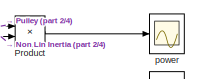
[diagram: root canvas - part 1/4, top right region]
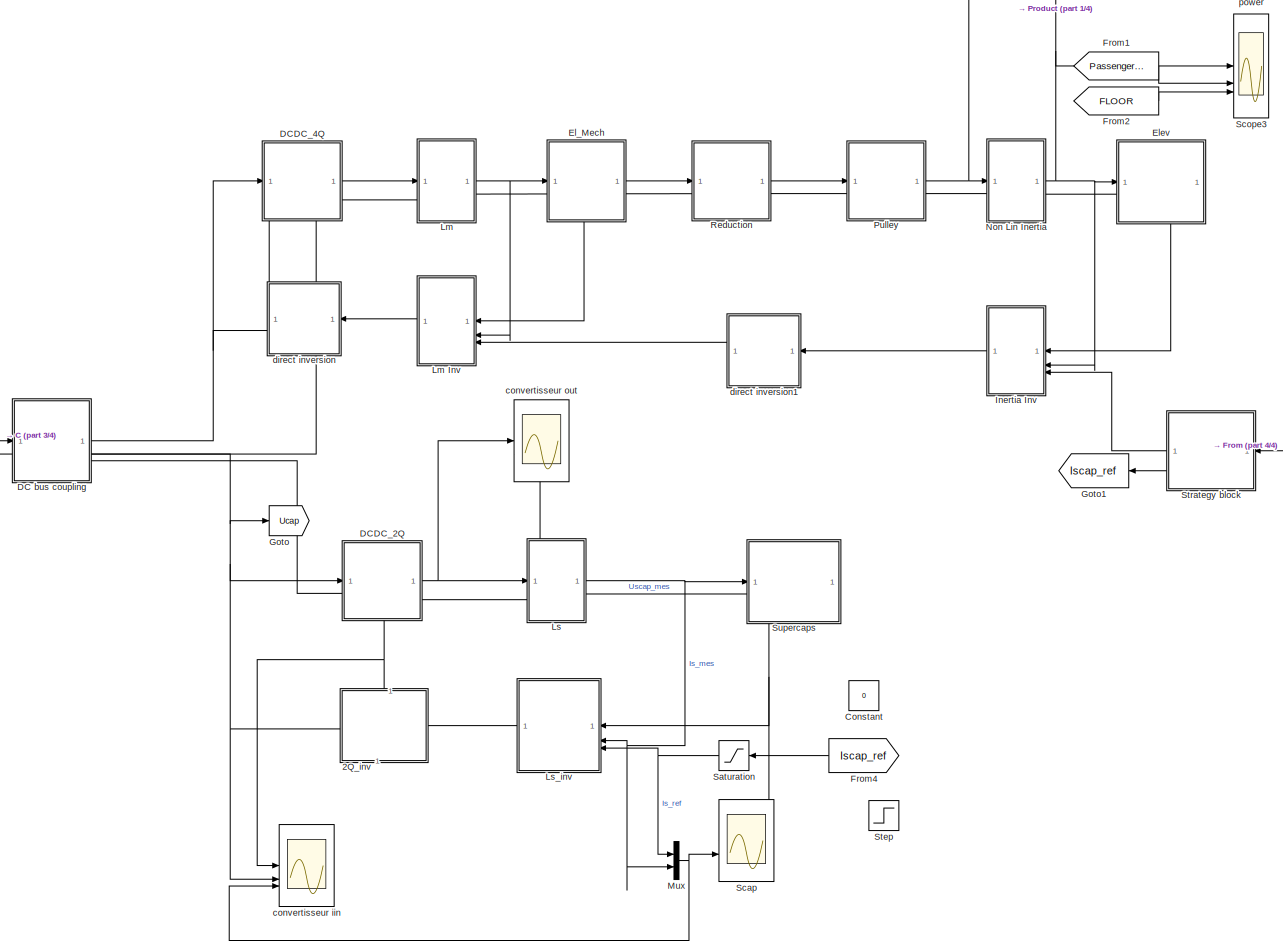
[diagram: root canvas - part 2/4, center side, full height]
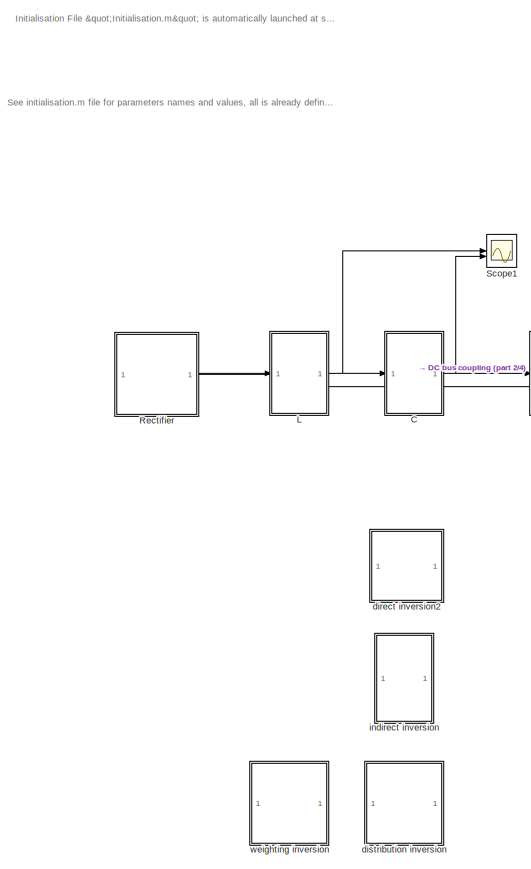
[diagram: root canvas - part 3/4, left side, full height]
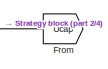
[diagram: root canvas - part 4/4, middle right region]
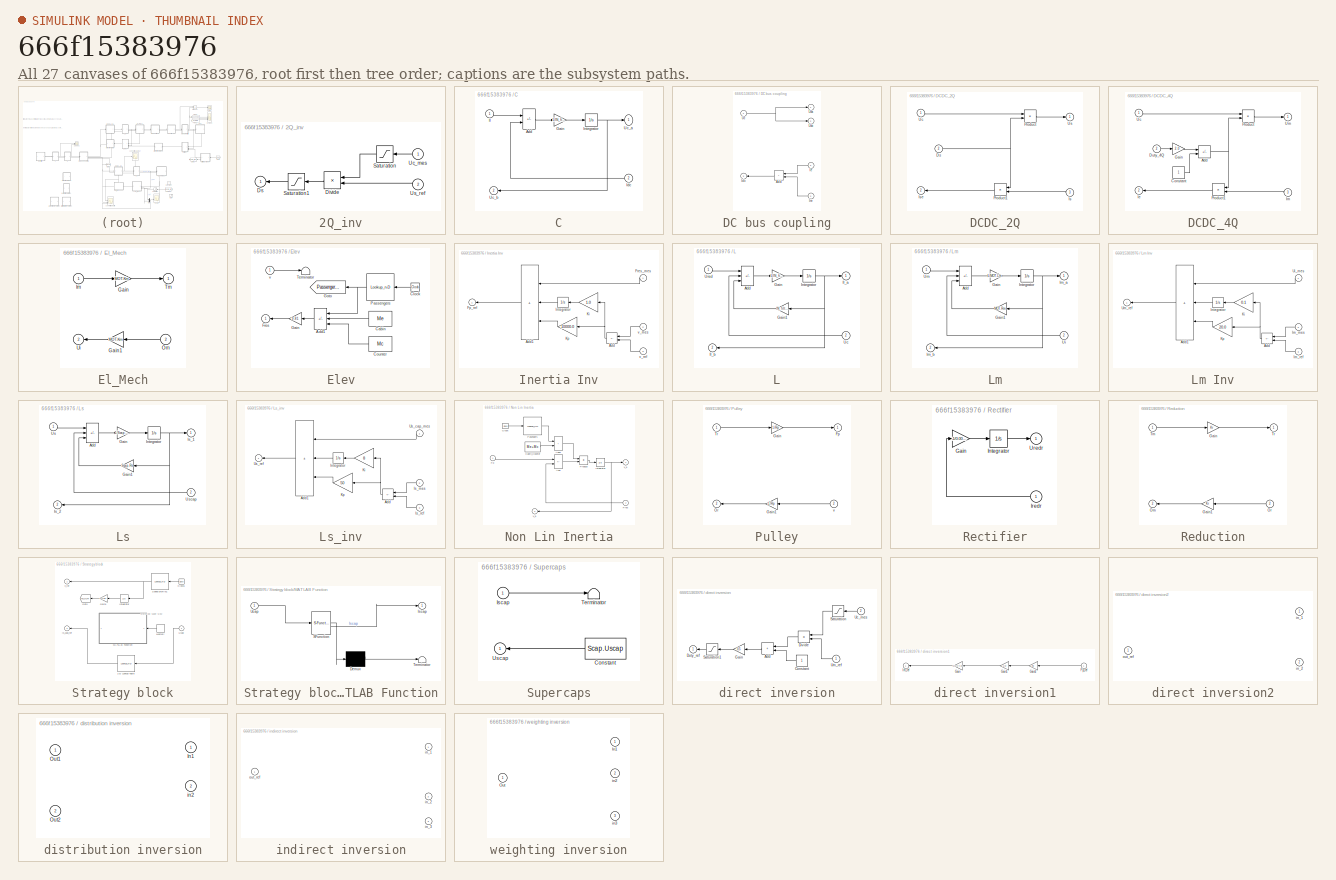
[diagram: thumbnail index - all 27 canvases of the model, root first then tree order]
MODEL slx_666f15383976
KIND model
CONFIG AbsTol = auto
CONFIG EnableMultiTasking = off
CONFIG FixedStep = auto
CONFIG InitFcn = Initialisation
CONFIG MaxStep = SIM.Step_max
CONFIG MinStep = auto
CONFIG RelTol = 1e-3
CONFIG SampleTimeConstraint = Unconstrained
CONFIG SolverName = VariableStepAuto
CONFIG StartTime = 0.0
CONFIG StopTime = SIM.Tmax
BLOCK [SubSystem] 2Q_inv
  PortSchema = {"entries":[{"content":{"sides":[{"content":{},"type":"ConnectorPlacement.EquallySpacedRectSide","uuid":"18509001-c8dc-44e8-8931-792b6113cab0"},{"content":{"connectorIds":["Out1"],"side":"RIGHT"},"type":"ConnectorPlacement.EquallySpacedRectSide","uuid":"41b7bb3a-745d-4c1f-860c-ac15cc754215"},{"content":{"connectorIds":["In1"],"side":"TOP"},"type":"ConnectorPlacement.EquallySpacedRectSide","uuid":"...<+372ch>
BLOCK [Product] 2Q_inv/Divide
  Inputs = /*
  NameLocation = top
BLOCK [Outport] 2Q_inv/Ds
  InitialOutput = 0
  VectorParamsAs1DForOutWhenUnconnected = off
BLOCK [Saturate] 2Q_inv/Saturation
  LowerLimit = 1
  NameLocation = top
  UpperLimit = Inf
BLOCK [Saturate] 2Q_inv/Saturation1
  LowerLimit = 0
  NameLocation = top
  UpperLimit = 1
BLOCK [Inport] 2Q_inv/Uc_mes
  NameLocation = top
BLOCK [Inport] 2Q_inv/Us_ref
  NameLocation = top
  Port = 2
BLOCK [SubSystem] C
  NameLocation = top
  PortSchema = {"entries":[{"content":{"sides":[{"content":{"connectorIds":["In1","Out2"]},"type":"ConnectorPlacement.EquallySpacedRectSide","uuid":"af5f45e0-9d2b-440a-ad04-5e1193860bd0"},{"content":{"connectorIds":["Out1","In2"],"side":"RIGHT"},"type":"ConnectorPlacement.EquallySpacedRectSide","uuid":"8de6af24-0ac6-4b19-a2ba-5daa5911acc7"},{"content":{"connectorIds":[],"side":"TOP"},"type":"ConnectorPlacement.E...<+253ch>  <repeated x8 — deduplicated; at blocks: C, El_Mech, L, Lm, Ls, Non Lin Inertia, Pulley, Reduction>
BLOCK [Sum] C/Add
  IconShape = rectangular
  Inputs = +-
BLOCK [Gain] C/Gain
  Gain = 1/IN_filter.C
BLOCK [Inport] C/Idc
  Port = 2
BLOCK [Inport] C/Il
BLOCK [Integrator] C/Integrator
  InitialCondition = Ured
BLOCK [Outport] C/Uc_a
  InitialOutput = 0
  VectorParamsAs1DForOutWhenUnconnected = off
BLOCK [Outport] C/Uc_b
  InitialOutput = 0
  Port = 2
  VectorParamsAs1DForOutWhenUnconnected = off
BLOCK [Constant] Constant
  NameLocation = top
  Value = 0
BLOCK [SubSystem] DC bus coupling
  NameLocation = top
  PortSchema = {"entries":[{"content":{"sides":[{"content":{"connectorIds":["In1","Out3"]},"type":"ConnectorPlacement.EquallySpacedRectSide","uuid":"a0cc6eb3-0f35-4a31-afc0-a3cae9b9d5bb"},{"content":{"connectorIds":["Out1","In2","Out2","In3"],"side":"RIGHT"},"type":"ConnectorPlacement.EquallySpacedRectSide","uuid":"f0fc86c1-6f18-402b-9eea-d081ace87e62"},{"content":{"connectorIds":[],"side":"TOP"},"type":"Connect...<+266ch>
BLOCK [Sum] DC bus coupling/Add
  IconShape = rectangular
  NameLocation = top
BLOCK [Outport] DC bus coupling/Idc
  InitialOutput = 0
  Port = 3
  VectorParamsAs1DForOutWhenUnconnected = off
BLOCK [Inport] DC bus coupling/Ie
  NameLocation = top
  Port = 2
BLOCK [Inport] DC bus coupling/Ire
  NameLocation = top
  Port = 3
BLOCK [Inport] DC bus coupling/Uc
BLOCK [Outport] DC bus coupling/Uca
  InitialOutput = 0
  VectorParamsAs1DForOutWhenUnconnected = off
BLOCK [Outport] DC bus coupling/Ucb
  InitialOutput = 0
  Port = 2
  VectorParamsAs1DForOutWhenUnconnected = off
BLOCK [SubSystem] DCDC_2Q
  NameLocation = top
  PortSchema = {"entries":[{"content":{"sides":[{"content":{"connectorIds":["In1","Out2"]},"type":"ConnectorPlacement.EquallySpacedRectSide","uuid":"18b8dea3-c73c-4489-bf41-881ff948b4bd"},{"content":{"connectorIds":["Out1","In3"],"side":"RIGHT"},"type":"ConnectorPlacement.EquallySpacedRectSide","uuid":"3421d2ab-808d-44dd-9f9d-6c595338ccbb"},{"content":{"connectorIds":[],"side":"TOP"},"type":"ConnectorPlacement.E...<+402ch>
BLOCK [Inport] DCDC_2Q/Ds
  NameLocation = top
  Port = 2
BLOCK [Inport] DCDC_2Q/Is
  NameLocation = top
  Port = 3
BLOCK [Outport] DCDC_2Q/Ise
  InitialOutput = 0
  Port = 2
  VectorParamsAs1DForOutWhenUnconnected = off
BLOCK [Product] DCDC_2Q/Product
BLOCK [Product] DCDC_2Q/Product1
  NameLocation = top
BLOCK [Inport] DCDC_2Q/Uc
BLOCK [Outport] DCDC_2Q/Us
  InitialOutput = 0
  VectorParamsAs1DForOutWhenUnconnected = off
BLOCK [SubSystem] DCDC_4Q
  NameLocation = top
  PortSchema = {"entries":[{"content":{"sides":[{"content":{"connectorIds":["In1","Out2"]},"type":"ConnectorPlacement.EquallySpacedRectSide","uuid":"18b8dea3-c73c-4489-bf41-881ff948b4bd"},{"content":{"connectorIds":["Out1","In3"],"side":"RIGHT"},"type":"ConnectorPlacement.EquallySpacedRectSide","uuid":"3421d2ab-808d-44dd-9f9d-6c595338ccbb"},{"content":{"connectorIds":[],"side":"TOP"},"type":"ConnectorPlacement.E...<+402ch>
BLOCK [Sum] DCDC_4Q/Add
  IconShape = rectangular
  Inputs = +-
BLOCK [Constant] DCDC_4Q/Constant
BLOCK [Inport] DCDC_4Q/Duty_4Q
  NameLocation = top
  Port = 2
BLOCK [Gain] DCDC_4Q/Gain
  Gain = 2.0
BLOCK [Outport] DCDC_4Q/Ie
  InitialOutput = 0
  Port = 2
  VectorParamsAs1DForOutWhenUnconnected = off
BLOCK [Inport] DCDC_4Q/Im
  NameLocation = top
  Port = 3
BLOCK [Product] DCDC_4Q/Product
BLOCK [Product] DCDC_4Q/Product1
  NameLocation = top
BLOCK [Inport] DCDC_4Q/Uc
BLOCK [Outport] DCDC_4Q/Um
  InitialOutput = 0
  VectorParamsAs1DForOutWhenUnconnected = off
BLOCK [SubSystem] El_Mech
  NameLocation = top
BLOCK [Gain] El_Mech/Gain
  Gain = MOT.Km
BLOCK [Gain] El_Mech/Gain1
  Gain = MOT.Km
  NameLocation = top
BLOCK [Inport] El_Mech/Im
BLOCK [Inport] El_Mech/Om
  Port = 2
BLOCK [Outport] El_Mech/Tm
  InitialOutput = 0
  VectorParamsAs1DForOutWhenUnconnected = off
BLOCK [Outport] El_Mech/Ui
  InitialOutput = 0
  Port = 2
  VectorParamsAs1DForOutWhenUnconnected = off
BLOCK [SubSystem] Elev
  PortSchema = {"entries":[{"content":{"sides":[{"content":{"connectorIds":["In1","Out1"]},"type":"ConnectorPlacement.EquallySpacedRectSide","uuid":"5a8fdec0-a98b-43d7-a4cd-372895ae0c1b"},{"content":{"connectorIds":[],"side":"RIGHT"},"type":"ConnectorPlacement.EquallySpacedRectSide","uuid":"94211a24-953d-4ef9-bbc7-a0604a4babfb"},{"content":{"connectorIds":[],"side":"TOP"},"type":"ConnectorPlacement.EquallySpaced...<+241ch>
BLOCK [Sum] Elev/Add1
  IconShape = rectangular
  Inputs = ++-
  NameLocation = top
BLOCK [Constant] Elev/Cabin
  NameLocation = top
  Value = Me
BLOCK [Clock] Elev/Clock
  NameLocation = top
BLOCK [Constant] Elev/Counter
  NameLocation = top
  Value = Mc
BLOCK [Outport] Elev/Fres
  InitialOutput = 0
  NameLocation = top
  VectorParamsAs1DForOutWhenUnconnected = off
BLOCK [Gain] Elev/Gain
  Gain = 9.81
  NameLocation = top
BLOCK [Goto] Elev/Goto
  GotoTag = Passenger_Mass
  NameLocation = top
  TagVisibility = global
BLOCK [Lookup_n-D] Elev/Passengers
  BreakpointsForDimension1 = cycle.time_ref
  InputPortMap = u0
  InternalRulePriority = Speed
  NameLocation = top
  NumberOfTableDimensions = 1
  RndMeth = Simplest
  Table = cycle.mass_ref
BLOCK [Terminator] Elev/Terminator
BLOCK [Inport] Elev/v
BLOCK [From] From
  GotoTag = Ucap
  NameLocation = top
BLOCK [From] From1
  GotoTag = Passenger_Mass
  TagVisibility = global
BLOCK [From] From2
  GotoTag = FLOOR
  TagVisibility = global
BLOCK [From] From4
  GotoTag = Iscap_ref
BLOCK [Goto] Goto
  GotoTag = Ucap
BLOCK [Goto] Goto1
  GotoTag = Iscap_ref
  NameLocation = top
BLOCK [SubSystem] Inertia Inv
BLOCK [Sum] Inertia Inv/Add
  IconShape = rectangular
  Inputs = -+
  NameLocation = top
BLOCK [Sum] Inertia Inv/Add1
  IconShape = rectangular
  Inputs = +++
  NameLocation = top
BLOCK [Outport] Inertia Inv/Fp_ref
  InitialOutput = 0
  VectorParamsAs1DForOutWhenUnconnected = off
BLOCK [Inport] Inertia Inv/Fres_mes
  NameLocation = top
BLOCK [Integrator] Inertia Inv/Integrator
  NameLocation = top
BLOCK [Gain] Inertia Inv/Ki
  Gain = 1.0
  NameLocation = top
BLOCK [Gain] Inertia Inv/Kp
  Gain = 10000.0
  NameLocation = top
BLOCK [Inport] Inertia Inv/v_mes
  NameLocation = top
  Port = 2
BLOCK [Inport] Inertia Inv/v_ref
  Port = 3
BLOCK [SubSystem] L
  NameLocation = top
BLOCK [Sum] L/Add
  IconShape = rectangular
  Inputs = +--
BLOCK [Gain] L/Gain
  Gain = 1/IN_filter.L
BLOCK [Gain] L/Gain1
  Gain = IN_filter.R
  NameLocation = top
BLOCK [Outport] L/Il_a
  InitialOutput = 0
  VectorParamsAs1DForOutWhenUnconnected = off
BLOCK [Outport] L/Il_b
  InitialOutput = 0
  Port = 2
  VectorParamsAs1DForOutWhenUnconnected = off
BLOCK [Integrator] L/Integrator
  LowerSaturationLimit = 0.0
BLOCK [Inport] L/Uc
  Port = 2
BLOCK [Inport] L/Ured
BLOCK [SubSystem] Lm
  NameLocation = top
BLOCK [SubSystem] Lm Inv
BLOCK [Sum] Lm Inv/Add
  IconShape = rectangular
  Inputs = -+
  NameLocation = top
BLOCK [Sum] Lm Inv/Add1
  IconShape = rectangular
  Inputs = +++
  NameLocation = top
BLOCK [Inport] Lm Inv/Im_mes
  NameLocation = top
  Port = 2
BLOCK [Inport] Lm Inv/Im_ref
  Port = 3
BLOCK [Integrator] Lm Inv/Integrator
  NameLocation = top
BLOCK [Gain] Lm Inv/Ki
  Gain = 0.1
  NameLocation = top
BLOCK [Gain] Lm Inv/Kp
  Gain = 20.0
  NameLocation = top
BLOCK [Inport] Lm Inv/Ui_mes
  NameLocation = top
BLOCK [Outport] Lm Inv/Um_ref
  InitialOutput = 0
  VectorParamsAs1DForOutWhenUnconnected = off
BLOCK [Sum] Lm/Add
  IconShape = rectangular
  Inputs = +--
BLOCK [Gain] Lm/Gain
  Gain = 1/MOT.Lm
BLOCK [Gain] Lm/Gain1
  Gain = MOT.Rm
  NameLocation = top
BLOCK [Outport] Lm/Im_a
  InitialOutput = 0
  VectorParamsAs1DForOutWhenUnconnected = off
BLOCK [Outport] Lm/Im_b
  InitialOutput = 0
  Port = 2
  VectorParamsAs1DForOutWhenUnconnected = off
BLOCK [Integrator] Lm/Integrator
BLOCK [Inport] Lm/Ui
  Port = 2
BLOCK [Inport] Lm/Um
BLOCK [SubSystem] Ls
  NameLocation = top
BLOCK [Sum] Ls/Add
  IconShape = rectangular
  Inputs = +--
BLOCK [Gain] Ls/Gain
  Gain = 1/Scap.Ls
BLOCK [Gain] Ls/Gain1
  Gain = Scap.Rs
  NameLocation = top
BLOCK [Integrator] Ls/Integrator
  LowerSaturationLimit = 0.0
BLOCK [Outport] Ls/Is_1
  InitialOutput = 0
  VectorParamsAs1DForOutWhenUnconnected = off
BLOCK [Outport] Ls/Is_2
  InitialOutput = 0
  Port = 2
  VectorParamsAs1DForOutWhenUnconnected = off
BLOCK [Inport] Ls/Us
BLOCK [Inport] Ls/Uscap
  Port = 2
BLOCK [SubSystem] Ls_inv
BLOCK [Sum] Ls_inv/Add
  IconShape = rectangular
  Inputs = -+
  NameLocation = top
BLOCK [Sum] Ls_inv/Add1
  IconShape = rectangular
  Inputs = +++
  NameLocation = top
BLOCK [Integrator] Ls_inv/Integrator
  NameLocation = top
BLOCK [Inport] Ls_inv/Is_mes
  NameLocation = top
  Port = 2
BLOCK [Inport] Ls_inv/Is_ref
  Port = 3
BLOCK [Gain] Ls_inv/Ki
  Gain = 8
  NameLocation = top
BLOCK [Gain] Ls_inv/Kp
  Gain = 50
BLOCK [Inport] Ls_inv/Us_cap_mes
  NameLocation = top
BLOCK [Outport] Ls_inv/Us_ref
  InitialOutput = 0
  VectorParamsAs1DForOutWhenUnconnected = off
BLOCK [Mux] Mux
  DisplayOption = bar
  Inputs = 2
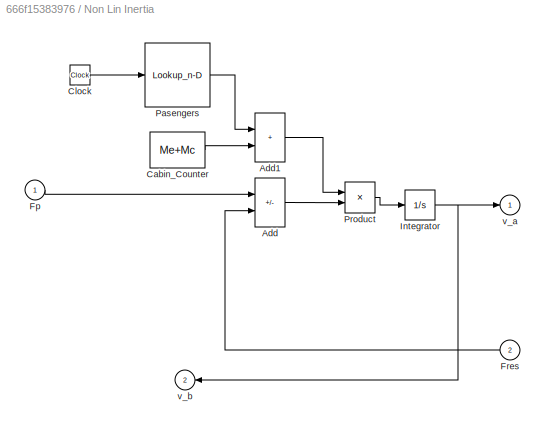
BLOCK [SubSystem] Non Lin Inertia
  NameLocation = top
BLOCK [Sum] Non Lin Inertia/Add
  IconShape = rectangular
  Inputs = +-
BLOCK [Sum] Non Lin Inertia/Add1
  IconShape = rectangular
BLOCK [Constant] Non Lin Inertia/Cabin_Counter
  Value = Me+Mc
BLOCK [Clock] Non Lin Inertia/Clock
BLOCK [Inport] Non Lin Inertia/Fp
BLOCK [Inport] Non Lin Inertia/Fres
  Port = 2
BLOCK [Integrator] Non Lin Inertia/Integrator
BLOCK [Lookup_n-D] Non Lin Inertia/Pasengers
  BreakpointsForDimension1 = cycle.time_ref
  InputPortMap = u0
  InternalRulePriority = Speed
  NumberOfTableDimensions = 1
  RndMeth = Simplest
  Table = cycle.mass_ref
BLOCK [Product] Non Lin Inertia/Product
  Inputs = /*
BLOCK [Outport] Non Lin Inertia/v_a
  InitialOutput = 0
  VectorParamsAs1DForOutWhenUnconnected = off
BLOCK [Outport] Non Lin Inertia/v_b
  InitialOutput = 0
  Port = 2
  VectorParamsAs1DForOutWhenUnconnected = off
BLOCK [Product] Product
BLOCK [SubSystem] Pulley
  NameLocation = top
BLOCK [Outport] Pulley/Fp
  InitialOutput = 0
  VectorParamsAs1DForOutWhenUnconnected = off
BLOCK [Gain] Pulley/Gain
  Gain = 1/Rp
BLOCK [Gain] Pulley/Gain1
  Gain = 1/Rp
  NameLocation = top
BLOCK [Outport] Pulley/Or
  InitialOutput = 0
  Port = 2
  VectorParamsAs1DForOutWhenUnconnected = off
BLOCK [Inport] Pulley/Tr
BLOCK [Inport] Pulley/v
  NameLocation = top
  Port = 2
BLOCK [SubSystem] Rectifier
  PortSchema = {"entries":[{"content":{"sides":[{"content":{"connectorIds":[]},"type":"ConnectorPlacement.EquallySpacedRectSide","uuid":"5a8fdec0-a98b-43d7-a4cd-372895ae0c1b"},{"content":{"connectorIds":["Out1","In1"],"side":"RIGHT"},"type":"ConnectorPlacement.EquallySpacedRectSide","uuid":"94211a24-953d-4ef9-bbc7-a0604a4babfb"},{"content":{"connectorIds":[],"side":"TOP"},"type":"ConnectorPlacement.EquallySpaced...<+241ch>
BLOCK [Gain] Rectifier/Gain
  Gain = -1/0.0001
BLOCK [Integrator] Rectifier/Integrator
  InitialCondition = Ured
  LimitOutput = on
  LowerSaturationLimit = Ured
BLOCK [Inport] Rectifier/Iredr
  NameLocation = top
BLOCK [Outport] Rectifier/Uredr
  InitialOutput = 0
  VectorParamsAs1DForOutWhenUnconnected = off
BLOCK [SubSystem] Reduction
  NameLocation = top
BLOCK [Gain] Reduction/Gain
  Gain = Kr
BLOCK [Gain] Reduction/Gain1
  Gain = Kr
  NameLocation = top
BLOCK [Outport] Reduction/Om
  InitialOutput = 0
  Port = 2
  VectorParamsAs1DForOutWhenUnconnected = off
BLOCK [Inport] Reduction/Or
  NameLocation = top
  Port = 2
BLOCK [Inport] Reduction/Tm
BLOCK [Outport] Reduction/Tr
  InitialOutput = 0
  VectorParamsAs1DForOutWhenUnconnected = off
BLOCK [Saturate] Saturation
  LowerLimit = -10
  NameLocation = top
  UpperLimit = 10
BLOCK [Scope] Scap
  ActiveDisplayYMaximum = 450
  ActiveDisplayYMinimum = 250
  DataLoggingVariableName = ScopeData2
  Floating = off
  GraphicalSettings = {"Style":{"BackgroundColor":[0.12941176470588237,0.12941176470588237,0.12941176470588237],"AxesColor":[0.07058823529411765,0.07058823529411765,0.07058823529411765],"LabelsColor":[0.8509803921568627,0.8509803921568627,0.8509803921568627],"PreserveColors":false,"Visible":[true,true,true],"LineStyle":["-","-","-"],"LineWidth":[1.5,1.5,1.5],"BarWidth":[0.9,0.9,0.9],"LineColor":["auto","auto","auto"],"...<+2521ch>
  LayoutDimensionsString = [2,1]
  MultipleDisplayCache = [{"MaxYLimMag":450,"MaxYLimReal":450,"MinYLimMag":250,"MinYLimReal":250,"PlotAsMagnitudePhase":false,"ShowGrid":true,"ShowLegend":true,"Title":"%<SignalLabel>","YLabel":"U [V]"},{"MaxYLimMag":11.250000000000007,"MaxYLimReal":11.250000000000007,"MinYLimMag":0,"MinYLimReal":-1.2500000000000642,"PlotAsMagnitudePhase":false,"ShowGrid":true,"ShowLegend":true,"Title":"%<SignalLabel>","YLabel":"I [A]"}]
  NumInputPorts = 2
  ScopeFrameLocation = window
  ShowLegend = on
  WasSavedAsWebScope = on
  WindowPosition = [1.000000,1.000000,1470.000000,894.000000,]
  YLabel = U [V]
BLOCK [Scope] Scope1
  ActiveDisplayYMaximum = 0.026611692115720252
  ActiveDisplayYMinimum = -0.029340226845849866
  Floating = off
  GraphicalSettings = {"Style":{"BackgroundColor":[0.12941176470588237,0.12941176470588237,0.12941176470588237],"AxesColor":[0.07058823529411765,0.07058823529411765,0.07058823529411765],"LabelsColor":[0.8509803921568627,0.8509803921568627,0.8509803921568627],"PreserveColors":false,"Visible":[true,true],"LineStyle":["-","-"],"LineWidth":[1.5,1.5],"BarWidth":[0.9,0.9],"LineColor":["auto","auto"],"LineFaceAlpha":[1,1],"Li...<+2497ch>
  LayoutDimensionsString = [2 1]
  MultipleDisplayCache = [{"MaxYLimMag":0.029340226845849866,"MaxYLimReal":0.026611692115720252,"MinYLimMag":0,"MinYLimReal":-0.029340226845849866,"PlotAsMagnitudePhase":false,"ShowGrid":true,"ShowLegend":false,"Title":"%<SignalLabel>","YLabel":"In Current (A)"},{"MaxYLimMag":3954.5257612823966,"MaxYLimReal":3954.5257612823966,"MinYLimMag":158.35135895107373,"MinYLimReal":158.35135895107373,"PlotAsMagnitudePhase":false,"S...<+84ch>
  NumInputPorts = 2
  ScopeFrameLocation = window
  WasSavedAsWebScope = on
  WindowPosition = [95.000000,20.000000,1280.000000,917.000000,]
  YLabel = In Current (A)
BLOCK [Scope] Scope3
  ActiveDisplayYMaximum = 1.2525333976576278
  ActiveDisplayYMinimum = -1.2536941876482326
  DataLoggingVariableName = ScopeData1
  Floating = off
  GraphicalSettings = {"Style":{"BackgroundColor":[0.12941176470588237,0.12941176470588237,0.12941176470588237],"AxesColor":[0.07058823529411765,0.07058823529411765,0.07058823529411765],"LabelsColor":[0.8509803921568627,0.8509803921568627,0.8509803921568627],"PreserveColors":false,"Visible":[true,true,true],"LineStyle":["-","-","-"],"LineWidth":[1.5,1.5,1.5],"BarWidth":[0.9,0.9,0.9],"LineColor":["auto","auto","auto"],"...<+2910ch>
  LayoutDimensionsString = [3 1]
  MultipleDisplayCache = [{"MaxYLimMag":1.2536941876482326,"MaxYLimReal":1.2525333976576278,"MinYLimMag":0,"MinYLimReal":-1.2536941876482326,"PlotAsMagnitudePhase":false,"ShowGrid":true,"ShowLegend":false,"Title":"%<SignalLabel>","YLabel":"Vertical Speed (m\/s)"},{"MaxYLimMag":540,"MaxYLimReal":540,"MinYLimMag":0,"MinYLimReal":-59.999999999999986,"PlotAsMagnitudePhase":false,"ShowGrid":true,"ShowLegend":false,"Title":"%<S...<+268ch>
  NumInputPorts = 3
  ScopeFrameLocation = window
  WasSavedAsWebScope = on
  WindowPosition = [1.000000,1.000000,1470.000000,894.000000,]
  YLabel = Vertical Speed (m/s)
BLOCK [Step] Step
  After = -7
  Before = 5
  NameLocation = top
  SampleTime = 0
  Time = 50
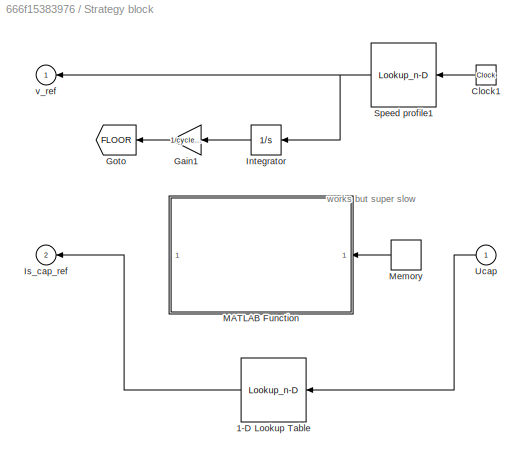
BLOCK [SubSystem] Strategy block
BLOCK [Lookup_n-D] Strategy block/1-D Lookup Table
  BreakpointsForDimension1 = [530 536 550 560]
  InputPortMap = u0
  InternalRulePriority = Speed
  NameLocation = top
  NumberOfTableDimensions = 1
  RndMeth = Simplest
  Table = [-10 0 0 10]
BLOCK [Clock] Strategy block/Clock1
  NameLocation = top
BLOCK [Gain] Strategy block/Gain1
  Gain = 1/cycle.d
  NameLocation = top
BLOCK [Goto] Strategy block/Goto
  GotoTag = FLOOR
  NameLocation = top
  TagVisibility = global
BLOCK [Integrator] Strategy block/Integrator
  NameLocation = top
BLOCK [Outport] Strategy block/Is_cap_ref
  InitialOutput = 0
  Port = 2
  VectorParamsAs1DForOutWhenUnconnected = off
BLOCK [SubSystem] Strategy block/MATLAB Function
  ErrorFcn = Stateflow.Translate.translate
  NameLocation = top
  PermitHierarchicalResolution = ExplicitOnly
  SFBlockType = MATLAB Function
  TreatAsAtomicUnit = on
BLOCK [Demux] Strategy block/MATLAB Function/ Demux 
  Outputs = 1
BLOCK [S-Function] Strategy block/MATLAB Function/ SFunction 
  EnableBusSupport = off
  FunctionName = sf_sfun
  PortCounts = [1 2]
  SFcnIsStateOwnerBlock = off
  SFunctionDeploymentMode = off
  Tag = Stateflow S-Function 2
BLOCK [Terminator] Strategy block/MATLAB Function/ Terminator 
BLOCK [Outport] Strategy block/MATLAB Function/Iscap
BLOCK [Inport] Strategy block/MATLAB Function/Ucap
BLOCK [Memory] Strategy block/Memory
  NameLocation = top
BLOCK [Lookup_n-D] Strategy block/Speed profile1
  BreakpointsForDimension1 = cycle.time_ref
  InputPortMap = u0
  InternalRulePriority = Speed
  NameLocation = top
  NumberOfTableDimensions = 1
  RndMeth = Simplest
  Table = cycle.speed_ref
BLOCK [Inport] Strategy block/Ucap
BLOCK [Outport] Strategy block/v_ref
  InitialOutput = 0
  VectorParamsAs1DForOutWhenUnconnected = off
BLOCK [SubSystem] Supercaps
  PortSchema = {"entries":[{"content":{"sides":[{"content":{"connectorIds":["In1","Out1"]},"type":"ConnectorPlacement.EquallySpacedRectSide","uuid":"5a8fdec0-a98b-43d7-a4cd-372895ae0c1b"},{"content":{"connectorIds":[],"side":"RIGHT"},"type":"ConnectorPlacement.EquallySpacedRectSide","uuid":"94211a24-953d-4ef9-bbc7-a0604a4babfb"},{"content":{"connectorIds":[],"side":"TOP"},"type":"ConnectorPlacement.EquallySpaced...<+241ch>
BLOCK [Constant] Supercaps/Constant
  NameLocation = top
  Value = Scap.Uscap
BLOCK [Inport] Supercaps/Iscap
BLOCK [Terminator] Supercaps/Terminator
BLOCK [Outport] Supercaps/Uscap
  InitialOutput = 0
  NameLocation = top
  VectorParamsAs1DForOutWhenUnconnected = off
BLOCK [Scope] convertisseur iin
  ActiveDisplayString = 2
  ActiveDisplayYMaximum = 551.87307597025244
  ActiveDisplayYMinimum = 534.0940154348209
  DataLoggingVariableName = ScopeData3
  Floating = off
  GraphicalSettings = {"Style":{"BackgroundColor":[0.12941176470588237,0.12941176470588237,0.12941176470588237],"AxesColor":[0.07058823529411765,0.07058823529411765,0.07058823529411765],"LabelsColor":[0.8509803921568627,0.8509803921568627,0.8509803921568627],"PreserveColors":false,"Visible":[true,true,true,true],"LineStyle":["-","-","-","-"],"LineWidth":[1.5,1.5,1.5,1.5],"BarWidth":[0.9,0.9,0.9,0.9],"LineColor":["auto"...<+3038ch>
  LayoutDimensionsString = [3,1]
  MultipleDisplayCache = [{"MaxYLimMag":1.125,"MaxYLimReal":1.125,"MinYLimMag":0,"MinYLimReal":-0.12499999999999997,"PlotAsMagnitudePhase":false,"ShowGrid":true,"ShowLegend":true,"Title":"%<SignalLabel>","YLabel":"D [-]"},{"MaxYLimMag":551.87307597025244,"MaxYLimReal":551.87307597025244,"MinYLimMag":534.0940154348209,"MinYLimReal":534.0940154348209,"PlotAsMagnitudePhase":false,"ShowGrid":true,"ShowLegend":true,"Title":"%<...<+211ch>
  NumInputPorts = 3
  ScopeFrameLocation = window
  ShowLegend = on
  Visible = on
  WasSavedAsWebScope = on
  WindowPosition = [1.000000,1.000000,1470.000000,894.000000,]
  YLabel = U [V]
BLOCK [Scope] convertisseur out
  ActiveDisplayYMaximum = 1475.0000018704086
  ActiveDisplayYMinimum = 224.9999831650853
  DataLoggingVariableName = ScopeData4
  Floating = off
  GraphicalSettings = {"Style":{"BackgroundColor":[0.12941176470588237,0.12941176470588237,0.12941176470588237],"AxesColor":[0.07058823529411765,0.07058823529411765,0.07058823529411765],"LabelsColor":[0.8509803921568627,0.8509803921568627,0.8509803921568627],"PreserveColors":false,"Visible":[true,true],"LineStyle":["-","-"],"LineWidth":[1.5,1.5],"BarWidth":[0.9,0.9],"LineColor":["auto","auto"],"LineFaceAlpha":[1,1],"Li...<+2462ch>
  LayoutDimensionsString = [2,1]
  MultipleDisplayCache = [{"MaxYLimMag":1475.0000018704086,"MaxYLimReal":1475.0000018704086,"MinYLimMag":224.9999831650853,"MinYLimReal":224.9999831650853,"PlotAsMagnitudePhase":false,"ShowGrid":true,"ShowLegend":true,"Title":"%<SignalLabel>","YLabel":"U [V]"},{"MaxYLimMag":11.138638315061916,"MaxYLimReal":11.138638315061916,"MinYLimMag":0,"MinYLimReal":-1.2376269121552057,"PlotAsMagnitudePhase":false,"ShowGrid":true,"Sho...<+57ch>
  NumInputPorts = 2
  ScopeFrameLocation = window
  ShowLegend = on
  WasSavedAsWebScope = on
  WindowPosition = [1.000000,1.000000,1470.000000,894.000000,]
  YLabel = U [V]
BLOCK [SubSystem] direct inversion
  PortSchema = {"entries":[{"content":{"sides":[{"content":{"connectorIds":["In1"]},"type":"ConnectorPlacement.EquallySpacedRectSide","uuid":"8737cb71-7821-4d4d-8489-35b4051bd236"},{"content":{"connectorIds":["In2"],"side":"RIGHT"},"type":"ConnectorPlacement.EquallySpacedRectSide","uuid":"1ea57527-9b6b-4299-8c88-4309fd975928"},{"content":{"connectorIds":["Out1"],"side":"TOP"},"type":"ConnectorPlacement.EquallySp...<+245ch>
BLOCK [Sum] direct inversion/Add
  IconShape = rectangular
  NameLocation = top
BLOCK [Constant] direct inversion/Constant
  NameLocation = top
BLOCK [Product] direct inversion/Divide
  Inputs = /*
  NameLocation = top
BLOCK [Outport] direct inversion/Duty_ref
  InitialOutput = 0
  VectorParamsAs1DForOutWhenUnconnected = off
BLOCK [Gain] direct inversion/Gain
  Gain = 0.5
  NameLocation = top
BLOCK [Saturate] direct inversion/Saturation
  LowerLimit = 1.0
  NameLocation = top
  UpperLimit = Inf
BLOCK [Saturate] direct inversion/Saturation1
  LowerLimit = 0
  NameLocation = top
  UpperLimit = 1
BLOCK [Inport] direct inversion/Uc_mes
  NameLocation = top
  Port = 2
BLOCK [Inport] direct inversion/Um_ref
  NameLocation = top
BLOCK [SubSystem] direct inversion1
BLOCK [Inport] direct inversion1/Fp_ref
  NameLocation = top
BLOCK [Gain] direct inversion1/Gain
  Gain = 1/MOT.Km
  NameLocation = top
BLOCK [Gain] direct inversion1/Gain1
  Gain = 1/Kr
  NameLocation = top
BLOCK [Gain] direct inversion1/Gain2
  Gain = Rp
  NameLocation = top
BLOCK [Outport] direct inversion1/Im_ref
  InitialOutput = 0
  VectorParamsAs1DForOutWhenUnconnected = off
BLOCK [SubSystem] direct inversion2
BLOCK [Inport] direct inversion2/in_1
  NameLocation = top
BLOCK [Inport] direct inversion2/in_2
  NameLocation = top
  Port = 2
BLOCK [Outport] direct inversion2/out_ref
  InitialOutput = 0
  VectorParamsAs1DForOutWhenUnconnected = off
BLOCK [SubSystem] distribution inversion
BLOCK [Inport] distribution inversion/In1
BLOCK [Outport] distribution inversion/Out1
  InitialOutput = 0
  VectorParamsAs1DForOutWhenUnconnected = off
BLOCK [Outport] distribution inversion/Out2
  InitialOutput = 0
  Port = 2
  VectorParamsAs1DForOutWhenUnconnected = off
BLOCK [Inport] distribution inversion/in2
  Port = 2
BLOCK [SubSystem] indirect inversion
BLOCK [Inport] indirect inversion/in_1
  NameLocation = top
BLOCK [Inport] indirect inversion/in_2
  NameLocation = top
  Port = 2
BLOCK [Inport] indirect inversion/in_3
  Port = 3
BLOCK [Outport] indirect inversion/out_ref
  InitialOutput = 0
  VectorParamsAs1DForOutWhenUnconnected = off
BLOCK [Scope] power
  ActiveDisplayYMaximum = 21491.297308669891
  ActiveDisplayYMinimum = -38911.055410775196
  DataLoggingVariableName = ScopeData5
  Floating = off
  GraphicalSettings = {"Style":{"BackgroundColor":[0.12941176470588237,0.12941176470588237,0.12941176470588237],"AxesColor":[0.07058823529411765,0.07058823529411765,0.07058823529411765],"LabelsColor":[0.8509803921568627,0.8509803921568627,0.8509803921568627],"PreserveColors":false,"Visible":[true],"LineStyle":["-"],"LineWidth":[1.5],"BarWidth":[0.9],"LineColor":["auto"],"LineFaceAlpha":[1],"LineEdgeAlpha":[1],"Marker":...<+2023ch>
  LayoutDimensionsString = [1,1]
  MultipleDisplayCache = [{"MaxYLimMag":38911.055410775196,"MaxYLimReal":21491.297308669891,"MinYLimMag":0,"MinYLimReal":-38911.055410775196,"PlotAsMagnitudePhase":false,"ShowGrid":true,"ShowLegend":false,"Title":"%<SignalLabel>","YLabel":"Power [W]"}]
  NumInputPorts = 1
  ScopeFrameLocation = window
  WasSavedAsWebScope = on
  WindowPosition = [1.000000,1.000000,1470.000000,894.000000,]
  YLabel = Power [W]
BLOCK [SubSystem] weighting inversion
BLOCK [Inport] weighting inversion/In1
BLOCK [Outport] weighting inversion/Out
  InitialOutput = 0
  VectorParamsAs1DForOutWhenUnconnected = off
BLOCK [Inport] weighting inversion/in2
  Port = 2
BLOCK [Inport] weighting inversion/in3
  Port = 3
ANNOTATION (root): Initialisation File "Initialisation.m" is automatically launched at simulation start
ANNOTATION (root): See initialisation.m file for parameters names and values, all is already defined except parameters for the control to be defined
ANNOTATION Strategy block: works but super slow
LINE 2Q_inv/Divide:1 -> 2Q_inv/Saturation1:1
LINE 2Q_inv/Saturation1:1 -> 2Q_inv/Ds:1
LINE 2Q_inv/Saturation:1 -> 2Q_inv/Divide:1
LINE 2Q_inv/Uc_mes:1 -> 2Q_inv/Saturation:1
LINE 2Q_inv/Us_ref:1 -> 2Q_inv/Divide:2
NET 2Q_inv:1 -> DCDC_2Q:2, convertisseur iin:1
LINE C/Add:1 -> C/Gain:1
LINE C/Gain:1 -> C/Integrator:1
LINE C/Idc:1 -> C/Add:2
LINE C/Il:1 -> C/Add:1
NET C/Integrator:1 -> C/Uc_a:1, C/Uc_b:1
NET C:1 -> DC bus coupling:1, Scope1:2
LINE C:2 -> L:2
LINE DC bus coupling/Add:1 -> DC bus coupling/Idc:1
LINE DC bus coupling/Ie:1 -> DC bus coupling/Add:1
LINE DC bus coupling/Ire:1 -> DC bus coupling/Add:2
NET DC bus coupling/Uc:1 -> DC bus coupling/Uca:1, DC bus coupling/Ucb:1
NET DC bus coupling:1 -> DCDC_4Q:1, direct inversion:2
NET DC bus coupling:2 -> 2Q_inv:1, DCDC_2Q:1, Goto:1, convertisseur iin:2
LINE DC bus coupling:3 -> C:2
NET DCDC_2Q/Ds:1 -> DCDC_2Q/Product1:1, DCDC_2Q/Product:2
LINE DCDC_2Q/Is:1 -> DCDC_2Q/Product1:2
LINE DCDC_2Q/Product1:1 -> DCDC_2Q/Ise:1
LINE DCDC_2Q/Product:1 -> DCDC_2Q/Us:1
LINE DCDC_2Q/Uc:1 -> DCDC_2Q/Product:1
NET DCDC_2Q:1 -> Ls:1, convertisseur out:1
LINE DCDC_2Q:2 -> DC bus coupling:3
NET DCDC_4Q/Add:1 -> DCDC_4Q/Product1:1, DCDC_4Q/Product:2
LINE DCDC_4Q/Constant:1 -> DCDC_4Q/Add:2
LINE DCDC_4Q/Duty_4Q:1 -> DCDC_4Q/Gain:1
LINE DCDC_4Q/Gain:1 -> DCDC_4Q/Add:1
LINE DCDC_4Q/Im:1 -> DCDC_4Q/Product1:2
LINE DCDC_4Q/Product1:1 -> DCDC_4Q/Ie:1
LINE DCDC_4Q/Product:1 -> DCDC_4Q/Um:1
LINE DCDC_4Q/Uc:1 -> DCDC_4Q/Product:1
LINE DCDC_4Q:1 -> Lm:1
LINE DCDC_4Q:2 -> DC bus coupling:2
LINE El_Mech/Gain1:1 -> El_Mech/Ui:1
LINE El_Mech/Gain:1 -> El_Mech/Tm:1
LINE El_Mech/Im:1 -> El_Mech/Gain:1
LINE El_Mech/Om:1 -> El_Mech/Gain1:1
LINE El_Mech:1 -> Reduction:1
NET El_Mech:2 -> Lm Inv:1, Lm:2
LINE Elev/Add1:1 -> Elev/Gain:1
LINE Elev/Cabin:1 -> Elev/Add1:2
LINE Elev/Clock:1 -> Elev/Passengers:1
LINE Elev/Counter:1 -> Elev/Add1:3
LINE Elev/Gain:1 -> Elev/Fres:1
NET Elev/Passengers:1 -> Elev/Add1:1, Elev/Goto:1
LINE Elev/v:1 -> Elev/Terminator:1
NET Elev:1 -> Inertia Inv:1, Non Lin Inertia:2
LINE From1:1 -> Scope3:2
LINE From2:1 -> Scope3:3
LINE From4:1 -> Saturation:1
LINE From:1 -> Strategy block:1
LINE Inertia Inv/Add1:1 -> Inertia Inv/Fp_ref:1
NET Inertia Inv/Add:1 -> Inertia Inv/Ki:1, Inertia Inv/Kp:1
LINE Inertia Inv/Fres_mes:1 -> Inertia Inv/Add1:1
LINE Inertia Inv/Integrator:1 -> Inertia Inv/Add1:2
LINE Inertia Inv/Ki:1 -> Inertia Inv/Integrator:1
LINE Inertia Inv/Kp:1 -> Inertia Inv/Add1:3
LINE Inertia Inv/v_mes:1 -> Inertia Inv/Add:1
LINE Inertia Inv/v_ref:1 -> Inertia Inv/Add:2
LINE Inertia Inv:1 -> direct inversion1:1
LINE L/Add:1 -> L/Gain:1
LINE L/Gain1:1 -> L/Add:3
LINE L/Gain:1 -> L/Integrator:1
NET L/Integrator:1 -> L/Gain1:1, L/Il_a:1, L/Il_b:1
LINE L/Uc:1 -> L/Add:2
LINE L/Ured:1 -> L/Add:1
NET L:1 -> C:1, Scope1:1
LINE L:2 -> Rectifier:1
LINE Lm Inv/Add1:1 -> Lm Inv/Um_ref:1
NET Lm Inv/Add:1 -> Lm Inv/Ki:1, Lm Inv/Kp:1
LINE Lm Inv/Im_mes:1 -> Lm Inv/Add:1
LINE Lm Inv/Im_ref:1 -> Lm Inv/Add:2
LINE Lm Inv/Integrator:1 -> Lm Inv/Add1:2
LINE Lm Inv/Ki:1 -> Lm Inv/Integrator:1
LINE Lm Inv/Kp:1 -> Lm Inv/Add1:3
LINE Lm Inv/Ui_mes:1 -> Lm Inv/Add1:1
LINE Lm Inv:1 -> direct inversion:1
LINE Lm/Add:1 -> Lm/Gain:1
LINE Lm/Gain1:1 -> Lm/Add:3
LINE Lm/Gain:1 -> Lm/Integrator:1
NET Lm/Integrator:1 -> Lm/Gain1:1, Lm/Im_a:1, Lm/Im_b:1
LINE Lm/Ui:1 -> Lm/Add:2
LINE Lm/Um:1 -> Lm/Add:1
NET Lm:1 -> El_Mech:1, Lm Inv:2
LINE Lm:2 -> DCDC_4Q:3
LINE Ls/Add:1 -> Ls/Gain:1
LINE Ls/Gain1:1 -> Ls/Add:3
LINE Ls/Gain:1 -> Ls/Integrator:1
NET Ls/Integrator:1 -> Ls/Gain1:1, Ls/Is_1:1, Ls/Is_2:1
LINE Ls/Us:1 -> Ls/Add:1
LINE Ls/Uscap:1 -> Ls/Add:2
NET Ls:1 -> Ls_inv:2, Mux:2, Supercaps:1
NET Ls:2 -> DCDC_2Q:3, convertisseur out:2
LINE Ls_inv/Add1:1 -> Ls_inv/Us_ref:1
NET Ls_inv/Add:1 -> Ls_inv/Ki:1, Ls_inv/Kp:1
LINE Ls_inv/Integrator:1 -> Ls_inv/Add1:2
LINE Ls_inv/Is_mes:1 -> Ls_inv/Add:1
LINE Ls_inv/Is_ref:1 -> Ls_inv/Add:2
LINE Ls_inv/Ki:1 -> Ls_inv/Integrator:1
LINE Ls_inv/Kp:1 -> Ls_inv/Add1:3
LINE Ls_inv/Us_cap_mes:1 -> Ls_inv/Add1:1
LINE Ls_inv:1 -> 2Q_inv:2
NET Mux:1 -> Scap:2, convertisseur iin:3
LINE Non Lin Inertia/Add1:1 -> Non Lin Inertia/Product:1
LINE Non Lin Inertia/Add:1 -> Non Lin Inertia/Product:2
LINE Non Lin Inertia/Cabin_Counter:1 -> Non Lin Inertia/Add1:2
LINE Non Lin Inertia/Clock:1 -> Non Lin Inertia/Pasengers:1
LINE Non Lin Inertia/Fp:1 -> Non Lin Inertia/Add:1
LINE Non Lin Inertia/Fres:1 -> Non Lin Inertia/Add:2
NET Non Lin Inertia/Integrator:1 -> Non Lin Inertia/v_a:1, Non Lin Inertia/v_b:1
LINE Non Lin Inertia/Pasengers:1 -> Non Lin Inertia/Add1:1
LINE Non Lin Inertia/Product:1 -> Non Lin Inertia/Integrator:1
NET Non Lin Inertia:1 -> Elev:1, Inertia Inv:2, Product:2, Scope3:1
LINE Non Lin Inertia:2 -> Pulley:2
LINE Product:1 -> power:1
LINE Pulley/Gain1:1 -> Pulley/Or:1
LINE Pulley/Gain:1 -> Pulley/Fp:1
LINE Pulley/Tr:1 -> Pulley/Gain:1
LINE Pulley/v:1 -> Pulley/Gain1:1
NET Pulley:1 -> Non Lin Inertia:1, Product:1
LINE Pulley:2 -> Reduction:2
LINE Rectifier/Gain:1 -> Rectifier/Integrator:1
LINE Rectifier/Integrator:1 -> Rectifier/Uredr:1
LINE Rectifier/Iredr:1 -> Rectifier/Gain:1
LINE Rectifier:1 -> L:1
LINE Reduction/Gain1:1 -> Reduction/Om:1
LINE Reduction/Gain:1 -> Reduction/Tr:1
LINE Reduction/Or:1 -> Reduction/Gain1:1
LINE Reduction/Tm:1 -> Reduction/Gain:1
LINE Reduction:1 -> Pulley:1
LINE Reduction:2 -> El_Mech:2
NET Saturation:1 -> Ls_inv:3, Mux:1
LINE Strategy block/1-D Lookup Table:1 -> Strategy block/Is_cap_ref:1
LINE Strategy block/Clock1:1 -> Strategy block/Speed profile1:1
LINE Strategy block/Gain1:1 -> Strategy block/Goto:1
LINE Strategy block/Integrator:1 -> Strategy block/Gain1:1
LINE Strategy block/Memory:1 -> Strategy block/MATLAB Function:1
NET Strategy block/Speed profile1:1 -> Strategy block/Integrator:1, Strategy block/v_ref:1
LINE Strategy block/Ucap:1 -> Strategy block/1-D Lookup Table:1
LINE Strategy block:1 -> Inertia Inv:3
LINE Strategy block:2 -> Goto1:1
LINE Supercaps/Constant:1 -> Supercaps/Uscap:1
LINE Supercaps/Iscap:1 -> Supercaps/Terminator:1
NET Supercaps:1 -> Ls:2, Ls_inv:1, Scap:1
LINE direct inversion/Add:1 -> direct inversion/Gain:1
LINE direct inversion/Constant:1 -> direct inversion/Add:2
LINE direct inversion/Divide:1 -> direct inversion/Add:1
LINE direct inversion/Gain:1 -> direct inversion/Saturation1:1
LINE direct inversion/Saturation1:1 -> direct inversion/Duty_ref:1
LINE direct inversion/Saturation:1 -> direct inversion/Divide:1
LINE direct inversion/Uc_mes:1 -> direct inversion/Saturation:1
LINE direct inversion/Um_ref:1 -> direct inversion/Divide:2
LINE direct inversion1/Fp_ref:1 -> direct inversion1/Gain2:1
LINE direct inversion1/Gain1:1 -> direct inversion1/Gain:1
LINE direct inversion1/Gain2:1 -> direct inversion1/Gain1:1
LINE direct inversion1/Gain:1 -> direct inversion1/Im_ref:1
LINE direct inversion1:1 -> Lm Inv:3
LINE direct inversion:1 -> DCDC_4Q:2
note: NET lines group one-source signal fan-out (src -> all destinations, sorted); 1:1 wires keep LINE
CHART Strategy block/MATLAB Function states=1 transitions=1
  STATE_LABEL 'eML_blk_kernel()'
  STATE_LABEL 'SCRIPT:\nfunction Iscap = strategy(Ucap)\n\n% we have an algebric loop problem: the input and output variables vary at\n% the same time -> there has to be an integral between input and output to\n% avoid that\n% dynamique du syteme beaucoup trop elevee\n% other solution: use memory bloc beforehand\n\n% all votages in V\nUmin = 530;\nU1 = 536;\nU2 = 550;\nUmax = 560;\n\nif Ucap < U1\n    Iscap = -10; % [A]\nelseif ...<+69ch>'
CHART  states=0 transitions=0
